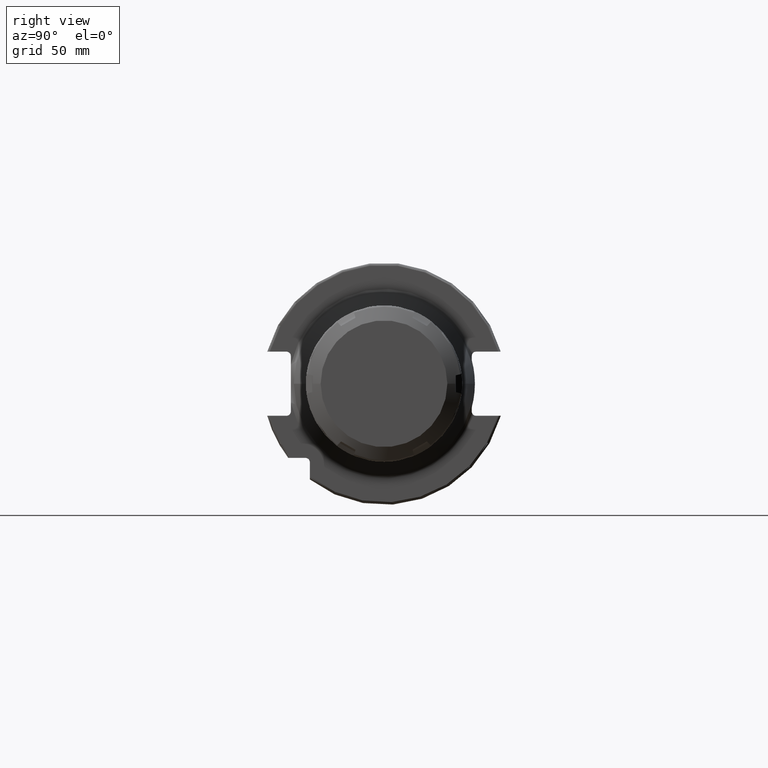
[diagram: clean part render]
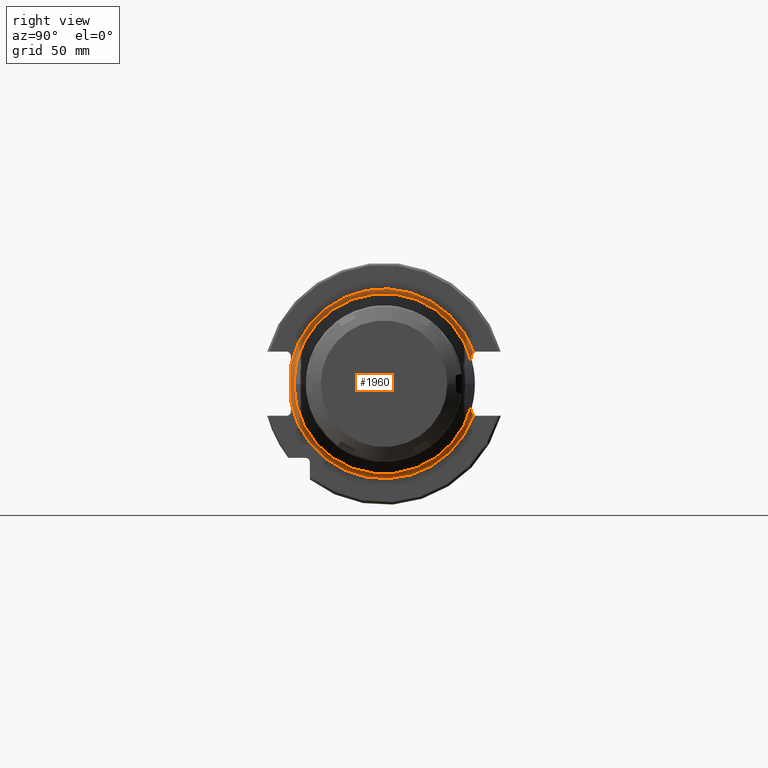
[diagram: same view with one face highlighted and labeled with its STEP entity id]
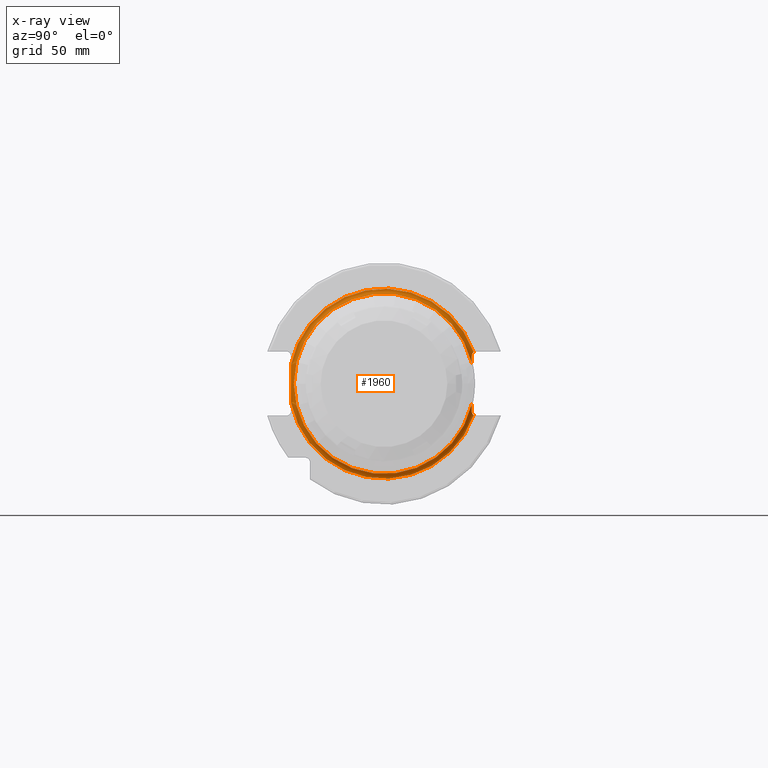
[diagram: x-ray of the same camera — body ghosted, the highlighted face saturated]
A machine part, right view. The second image highlights one B-rep face of the part: STEP entity #1960.
The next image is the same camera in x-ray: the body ghosted, the highlighted face saturated — about 0% of this face is hidden behind the body in this view.
In plain terms, the highlighted toroidal blend (fillet) surface has major radius 38.251 mm and minor (blend) radius 2 mm.
Its self-contained STEP definition (entity closure, byte-faithful):
#144=CARTESIAN_POINT('',(1.905E1,0.E0,0.E0));
#145=DIRECTION('',(1.E0,0.E0,0.E0));
#146=DIRECTION('',(0.E0,-9.803676714556E-1,-1.971781650302E-1));
#147=AXIS2_PLACEMENT_3D('',#144,#145,#146);
#169=CARTESIAN_POINT('',(1.905E1,0.E0,0.E0));
#170=DIRECTION('',(1.E0,0.E0,0.E0));
#171=DIRECTION('',(0.E0,9.439650172590E-1,3.300455213924E-1));
#172=AXIS2_PLACEMENT_3D('',#169,#170,#171);
#186=CARTESIAN_POINT('',(2.069429530201E1,3.53E1,-8.387778037985E0));
#187=CARTESIAN_POINT('',(2.064817555272E1,3.53E1,-8.423834292249E0));
#188=CARTESIAN_POINT('',(2.056017246103E1,3.53E1,-8.506531700231E0));
#189=CARTESIAN_POINT('',(2.043719674708E1,3.53E1,-8.656391356123E0));
#190=CARTESIAN_POINT('',(2.031949742987E1,3.53E1,-8.831184725766E0));
#191=CARTESIAN_POINT('',(2.020496785961E1,3.53E1,-9.031344969546E0));
#192=CARTESIAN_POINT('',(2.009267953983E1,3.53E1,-9.257426782636E0));
#193=CARTESIAN_POINT('',(1.998431565294E1,3.53E1,-9.504905855564E0));
#194=CARTESIAN_POINT('',(1.987948401286E1,3.53E1,-9.773140589641E0));
#195=CARTESIAN_POINT('',(1.977616235926E1,3.53E1,-1.006760201009E1));
#196=CARTESIAN_POINT('',(1.967375262211E1,3.53E1,-1.039244986877E1));
#197=CARTESIAN_POINT('',(1.957250761391E1,3.53E1,-1.075097002105E1));
#198=CARTESIAN_POINT('',(1.950664572193E1,3.53E1,-1.101311607968E1));
#199=CARTESIAN_POINT('',(1.947441086688E1,3.53E1,-1.115E1));
#201=CARTESIAN_POINT('',(1.947441086688E1,3.53E1,-1.115E1));
#202=CARTESIAN_POINT('',(1.944749029963E1,3.53E1,-1.126431702658E1));
#203=CARTESIAN_POINT('',(1.937936367513E1,3.532176270363E1,-1.149476956594E1));
#204=CARTESIAN_POINT('',(1.925288320365E1,3.543107837405E1,-1.184770498952E1));
#205=CARTESIAN_POINT('',(1.914073549607E1,3.560887668289E1,-1.216447868090E1));
#206=CARTESIAN_POINT('',(1.906581975939E1,3.584416317542E1,-1.243381361364E1));
#207=CARTESIAN_POINT('',(1.905E1,3.601835402215E1,-1.256753896463E1));
#208=CARTESIAN_POINT('',(1.905E1,3.610756724893E1,-1.262455773360E1));
#210=CARTESIAN_POINT('',(1.905E1,-3.750000614658E1,-7.542235331075E0));
#211=CARTESIAN_POINT('',(1.904999999984E1,-3.750000614658E1,-6.232641800555E0));
#212=CARTESIAN_POINT('',(1.914246408856E1,-3.749999643595E1,-3.659478330212E0));
#213=CARTESIAN_POINT('',(1.922327593595E1,-3.750000325431E1,
-1.064938912243E-5));
#214=CARTESIAN_POINT('',(1.914246397311E1,-3.749999054681E1,3.659522898781E0));
#215=CARTESIAN_POINT('',(1.904999999835E1,-3.750001988790E1,6.232561309917E0));
#216=CARTESIAN_POINT('',(1.905E1,-3.750001988790E1,7.542153398690E0));
#218=CARTESIAN_POINT('',(1.905E1,3.610756724893E1,1.262455773360E1));
#219=CARTESIAN_POINT('',(1.905E1,3.601835709478E1,1.256754092843E1));
#220=CARTESIAN_POINT('',(1.906582037848E1,3.584417039676E1,1.243381594703E1));
#221=CARTESIAN_POINT('',(1.914072330086E1,3.560889757637E1,1.216451551754E1));
#222=CARTESIAN_POINT('',(1.925289266523E1,3.543107275217E1,1.184767644089E1));
#223=CARTESIAN_POINT('',(1.937930621579E1,3.532180268651E1,1.149493614103E1));
#224=CARTESIAN_POINT('',(1.944747280880E1,3.53E1,1.126439130063E1));
#225=CARTESIAN_POINT('',(1.947441086688E1,3.53E1,1.115E1));
#227=CARTESIAN_POINT('',(1.947441086688E1,3.53E1,1.115E1));
#228=CARTESIAN_POINT('',(1.950664543126E1,3.53E1,1.101311731400E1));
#229=CARTESIAN_POINT('',(1.957250689665E1,3.53E1,1.075097255634E1));
#230=CARTESIAN_POINT('',(1.967375404720E1,3.53E1,1.039244486100E1));
#231=CARTESIAN_POINT('',(1.977616366848E1,3.53E1,1.006759839260E1));
#232=CARTESIAN_POINT('',(1.987948259796E1,3.53E1,9.773144272218E0));
#233=CARTESIAN_POINT('',(1.998431803383E1,3.53E1,9.504900066513E0));
#234=CARTESIAN_POINT('',(2.009267789245E1,3.53E1,9.257430625447E0));
#235=CARTESIAN_POINT('',(2.020496614395E1,3.53E1,9.031348103498E0));
#236=CARTESIAN_POINT('',(2.031949610241E1,3.53E1,8.831186830926E0));
#237=CARTESIAN_POINT('',(2.043719633736E1,3.53E1,8.656391806401E0));
#238=CARTESIAN_POINT('',(2.056017296193E1,3.53E1,8.506531119248E0));
#239=CARTESIAN_POINT('',(2.064817587191E1,3.53E1,8.423834042707E0));
#240=CARTESIAN_POINT('',(2.069429530201E1,3.53E1,8.387778037985E0));
#242=CARTESIAN_POINT('',(2.069429530201E1,0.E0,0.E0));
#243=DIRECTION('',(1.E0,0.E0,0.E0));
#244=DIRECTION('',(0.E0,9.729115861763E-1,2.311775194173E-1));
#245=AXIS2_PLACEMENT_3D('',#242,#243,#244);
#264=CARTESIAN_POINT('',(2.069429530201E1,0.E0,0.E0));
#265=DIRECTION('',(1.E0,0.E0,0.E0));
#266=DIRECTION('',(0.E0,-1.E0,0.E0));
#267=AXIS2_PLACEMENT_3D('',#264,#265,#266);
#1659=CARTESIAN_POINT('',(1.905E1,-3.750000368504E1,-7.542253922209E0));
#1660=CARTESIAN_POINT('',(1.905E1,3.610756724893E1,-1.262455773360E1));
#1661=VERTEX_POINT('',#1659);
#1662=VERTEX_POINT('',#1660);
#1663=CARTESIAN_POINT('',(2.069429530201E1,-3.628284471227E1,0.E0));
#1664=CARTESIAN_POINT('',(2.069429530201E1,3.53E1,-8.387778037985E0));
#1665=VERTEX_POINT('',#1663);
#1666=VERTEX_POINT('',#1664);
#1667=CARTESIAN_POINT('',(1.905E1,3.610756724893E1,1.262455773360E1));
#1668=CARTESIAN_POINT('',(1.905E1,-3.750001158851E1,7.542214626137E0));
#1669=VERTEX_POINT('',#1667);
#1670=VERTEX_POINT('',#1668);
#1671=CARTESIAN_POINT('',(2.069429530201E1,3.53E1,8.387778037985E0));
#1672=VERTEX_POINT('',#1671);
#1694=VERTEX_POINT('',#225);
#1695=VERTEX_POINT('',#199);
#1940=CARTESIAN_POINT('',(2.105E1,0.E0,0.E0));
#1941=DIRECTION('',(1.E0,0.E0,0.E0));
#1942=DIRECTION('',(0.E0,1.485959642861E-3,-9.999988959614E-1));
#1943=AXIS2_PLACEMENT_3D('',#1940,#1941,#1942);
#1944=TOROIDAL_SURFACE('',#1943,3.825095908085E1,2.E0);
#1946=ORIENTED_EDGE('',*,*,#1945,.T.);
#1948=ORIENTED_EDGE('',*,*,#1947,.T.);
#1949=ORIENTED_EDGE('',*,*,#1850,.T.);
#1950=ORIENTED_EDGE('',*,*,#1879,.T.);
#1951=ORIENTED_EDGE('',*,*,#1894,.F.);
#1953=ORIENTED_EDGE('',*,*,#1952,.T.);
#1954=ORIENTED_EDGE('',*,*,#1923,.F.);
#1956=ORIENTED_EDGE('',*,*,#1955,.T.);
#1957=ORIENTED_EDGE('',*,*,#1858,.T.);
#1958=EDGE_LOOP('',(#1946,#1948,#1949,#1950,#1951,#1953,#1954,#1956,#1957));
#1959=FACE_OUTER_BOUND('',#1958,.F.);
#1960=ADVANCED_FACE('',(#1959),#1944,.F.);
#148=CIRCLE('',#147,3.825095908085E1);
#173=CIRCLE('',#172,3.825095908085E1);
#200=B_SPLINE_CURVE_WITH_KNOTS('',3,(#186,#187,#188,#189,#190,#191,#192,#193,
#194,#195,#196,#197,#198,#199),.UNSPECIFIED.,.F.,.F.,(4,1,1,1,1,1,1,1,1,1,1,4),(
0.E0,9.090909090909E-2,1.818181818182E-1,2.727272727273E-1,3.636363636364E-1,
4.545454545455E-1,5.454545454545E-1,6.363636363636E-1,7.272727272727E-1,
8.181818181818E-1,9.090909090909E-1,1.E0),.UNSPECIFIED.);
#209=B_SPLINE_CURVE_WITH_KNOTS('',3,(#201,#202,#203,#204,#205,#206,#207,#208),
.UNSPECIFIED.,.F.,.F.,(4,1,1,1,1,4),(0.E0,2.E-1,4.E-1,6.E-1,8.E-1,1.E0),
.UNSPECIFIED.);
#217=B_SPLINE_CURVE_WITH_KNOTS('',3,(#210,#211,#212,#213,#214,#215,#216),
.UNSPECIFIED.,.F.,.F.,(4,1,1,1,4),(0.E0,2.5E-1,5.E-1,7.5E-1,1.E0),
.UNSPECIFIED.);
#226=B_SPLINE_CURVE_WITH_KNOTS('',3,(#218,#219,#220,#221,#222,#223,#224,#225),
.UNSPECIFIED.,.F.,.F.,(4,1,1,1,1,4),(0.E0,2.E-1,4.E-1,6.E-1,8.E-1,1.E0),
.UNSPECIFIED.);
#241=B_SPLINE_CURVE_WITH_KNOTS('',3,(#227,#228,#229,#230,#231,#232,#233,#234,
#235,#236,#237,#238,#239,#240),.UNSPECIFIED.,.F.,.F.,(4,1,1,1,1,1,1,1,1,1,1,4),(
0.E0,9.090909090909E-2,1.818181818182E-1,2.727272727273E-1,3.636363636364E-1,
4.545454545455E-1,5.454545454545E-1,6.363636363636E-1,7.272727272727E-1,
8.181818181818E-1,9.090909090909E-1,1.E0),.UNSPECIFIED.);
#246=CIRCLE('',#245,3.628284471227E1);
#268=CIRCLE('',#267,3.628284471227E1);
#1850=EDGE_CURVE('',#1666,#1695,#200,.T.);
#1858=EDGE_CURVE('',#1694,#1672,#241,.T.);
#1879=EDGE_CURVE('',#1695,#1662,#209,.T.);
#1894=EDGE_CURVE('',#1661,#1662,#148,.T.);
#1923=EDGE_CURVE('',#1669,#1670,#173,.T.);
#1945=EDGE_CURVE('',#1672,#1665,#246,.T.);
#1947=EDGE_CURVE('',#1665,#1666,#268,.T.);
#1952=EDGE_CURVE('',#1661,#1670,#217,.T.);
#1955=EDGE_CURVE('',#1669,#1694,#226,.T.);